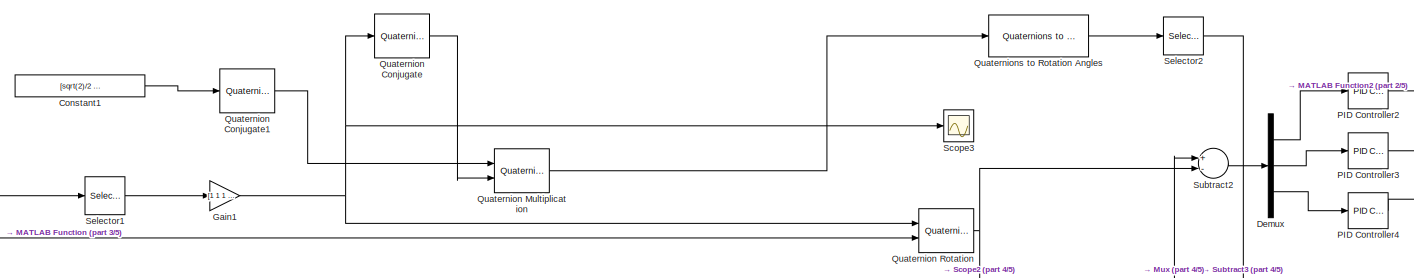
[diagram: root canvas - part 1/5, top center region]
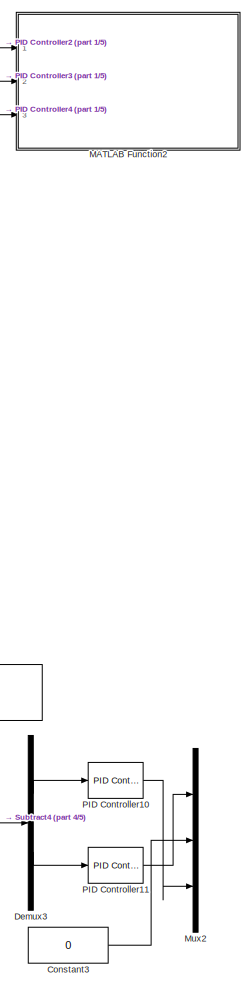
[diagram: root canvas - part 2/5, middle right region]
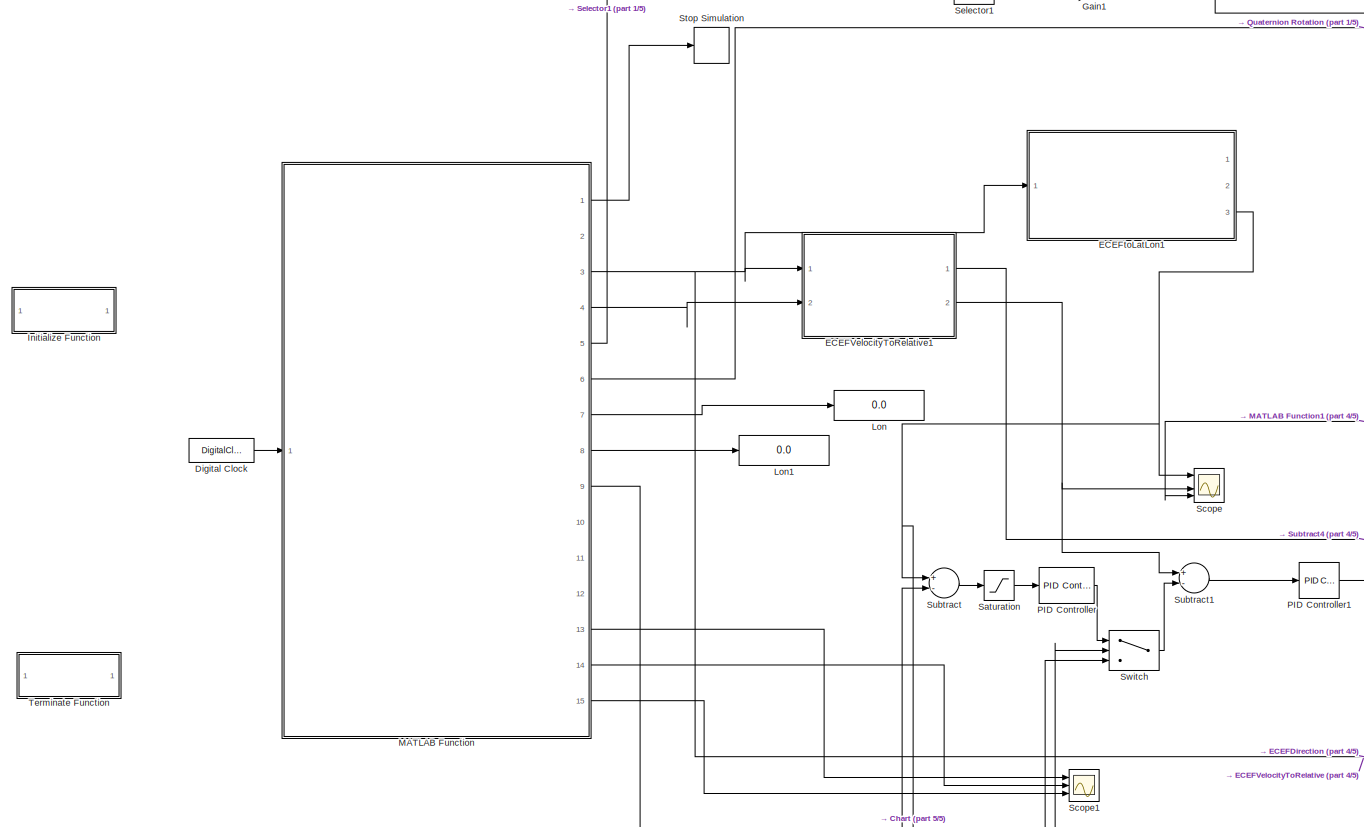
[diagram: root canvas - part 3/5, middle left region]
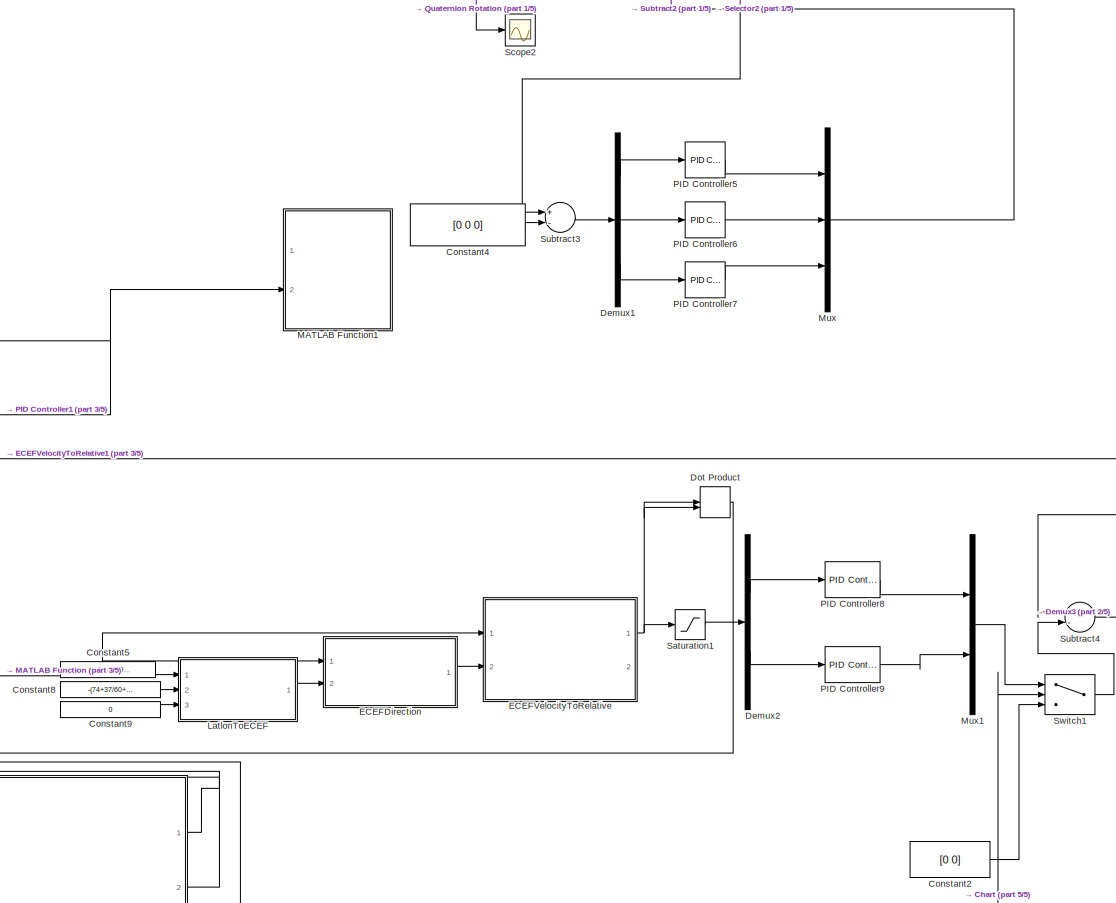
[diagram: root canvas - part 4/5, middle right region]
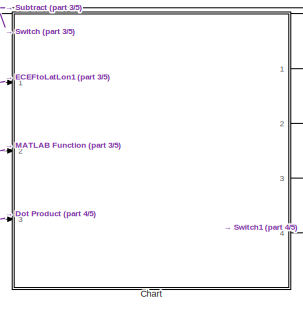
[diagram: root canvas - part 5/5, bottom center region]
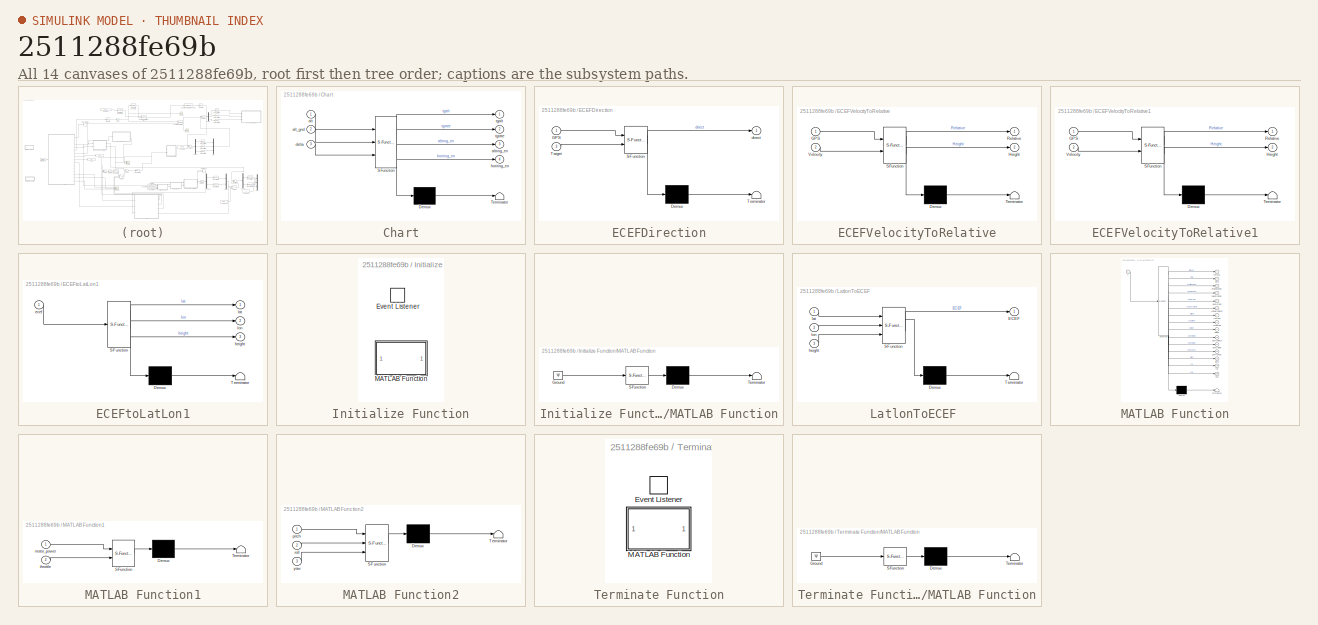
[diagram: thumbnail index - all 14 canvases of the model, root first then tree order]
MODEL slx_2511288fe69b
KIND model
CONFIG AbsTol = auto
CONFIG EnableMultiTasking = off
CONFIG FixedStep = auto
CONFIG MaxStep = auto
CONFIG MinStep = auto
CONFIG RelTol = 1e-3
CONFIG SampleTimeConstraint = Unconstrained
CONFIG Solver = VariableStepDiscrete
CONFIG SolverName = VariableStepDiscrete
CONFIG StartTime = 0.0
CONFIG StopTime = 200
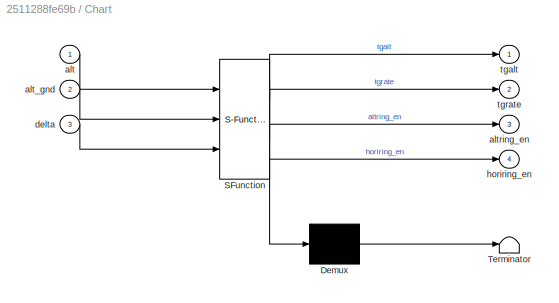
BLOCK [SubSystem] Chart
  BlockKeywords = __PRM__SERIALIZED__DATA__:Stateflow Chart,Stateflow Diagram
  ErrorFcn = Stateflow.Translate.translate
  PermitHierarchicalResolution = ExplicitOnly
  Ports = [3, 4]
  RequestExecContextInheritance = off
  SFBlockType = Chart
  TreatAsAtomicUnit = on
BLOCK [Demux] Chart/ Demux 
  Outputs = 1
  Ports = [1, 1]
BLOCK [S-Function] Chart/ SFunction 
  EnableBusSupport = on
  FunctionName = sf_sfun
  PortCounts = [3 5]
  Ports = [3, 5]
  SFcnIsStateOwnerBlock = off
  SFunctionDeploymentMode = off
  Tag = Stateflow S-Function untitled 11
BLOCK [Terminator] Chart/ Terminator 
BLOCK [Inport] Chart/alt
  IconDisplay = Port number
BLOCK [Inport] Chart/alt_gnd
  IconDisplay = Port number
  Port = 2
BLOCK [Outport] Chart/altring_en
  IconDisplay = Port number
  Port = 3
BLOCK [Inport] Chart/delta
  IconDisplay = Port number
  Port = 3
BLOCK [Outport] Chart/horiring_en
  IconDisplay = Port number
  Port = 4
BLOCK [Outport] Chart/tgalt
  IconDisplay = Port number
BLOCK [Outport] Chart/tgrate
  IconDisplay = Port number
  Port = 2
BLOCK [Constant] Constant1
  Value = [sqrt(2)/2 0 0 -sqrt(2)/2]
BLOCK [Constant] Constant2
  Value = [0 0]
BLOCK [Constant] Constant3
  Value = 0
BLOCK [Constant] Constant4
  Value = [0 0 0]
BLOCK [Constant] Constant5
  Value = -(0+5/60+49/3600)
BLOCK [Constant] Constant8
  Value = -(74+37/60+3/3600)
BLOCK [Constant] Constant9
  Value = 0
BLOCK [Demux] Demux
  DisplayOption = bar
  Outputs = 3
  Ports = [1, 3]
BLOCK [Demux] Demux1
  DisplayOption = bar
  Outputs = 3
  Ports = [1, 3]
BLOCK [Demux] Demux2
  DisplayOption = bar
  Outputs = 2
  Ports = [1, 2]
BLOCK [Demux] Demux3
  DisplayOption = bar
  Outputs = 2
  Ports = [1, 2]
BLOCK [DigitalClock] Digital Clock
  SampleTime = 0.01
BLOCK [DotProduct] Dot Product
  OutDataTypeStr = Inherit: Inherit via internal rule
BLOCK [SubSystem] ECEFDirection
  ErrorFcn = Stateflow.Translate.translate
  PermitHierarchicalResolution = ExplicitOnly
  Ports = [2, 1]
  RequestExecContextInheritance = off
  SFBlockType = MATLAB Function
  TreatAsAtomicUnit = on
BLOCK [Demux] ECEFDirection/ Demux 
  Outputs = 1
  Ports = [1, 1]
BLOCK [S-Function] ECEFDirection/ SFunction 
  EnableBusSupport = on
  FunctionName = sf_sfun
  PortCounts = [2 2]
  Ports = [2, 2]
  SFcnIsStateOwnerBlock = off
  SFunctionDeploymentMode = off
  Tag = Stateflow S-Function untitled 8
BLOCK [Terminator] ECEFDirection/ Terminator 
BLOCK [Inport] ECEFDirection/GPS
  IconDisplay = Port number
BLOCK [Inport] ECEFDirection/Target
  IconDisplay = Port number
  Port = 2
BLOCK [Outport] ECEFDirection/direct
  IconDisplay = Port number
BLOCK [SubSystem] ECEFVelocityToRelative
  ErrorFcn = Stateflow.Translate.translate
  PermitHierarchicalResolution = ExplicitOnly
  Ports = [2, 2]
  RequestExecContextInheritance = off
  SFBlockType = MATLAB Function
  TreatAsAtomicUnit = on
BLOCK [Demux] ECEFVelocityToRelative/ Demux 
  Outputs = 1
  Ports = [1, 1]
BLOCK [S-Function] ECEFVelocityToRelative/ SFunction 
  EnableBusSupport = on
  FunctionName = sf_sfun
  PortCounts = [2 3]
  Ports = [2, 3]
  SFcnIsStateOwnerBlock = off
  SFunctionDeploymentMode = off
  Tag = Stateflow S-Function untitled 10
BLOCK [Terminator] ECEFVelocityToRelative/ Terminator 
BLOCK [Inport] ECEFVelocityToRelative/GPS
  IconDisplay = Port number
BLOCK [Outport] ECEFVelocityToRelative/Height
  IconDisplay = Port number
  Port = 2
BLOCK [Outport] ECEFVelocityToRelative/Relative
  IconDisplay = Port number
BLOCK [Inport] ECEFVelocityToRelative/Velocity
  IconDisplay = Port number
  Port = 2
BLOCK [SubSystem] ECEFVelocityToRelative1
  ErrorFcn = Stateflow.Translate.translate
  PermitHierarchicalResolution = ExplicitOnly
  Ports = [2, 2]
  RequestExecContextInheritance = off
  SFBlockType = MATLAB Function
  TreatAsAtomicUnit = on
BLOCK [Demux] ECEFVelocityToRelative1/ Demux 
  Outputs = 1
  Ports = [1, 1]
BLOCK [S-Function] ECEFVelocityToRelative1/ SFunction 
  EnableBusSupport = on
  FunctionName = sf_sfun
  PortCounts = [2 3]
  Ports = [2, 3]
  SFcnIsStateOwnerBlock = off
  SFunctionDeploymentMode = off
  Tag = Stateflow S-Function untitled 9
BLOCK [Terminator] ECEFVelocityToRelative1/ Terminator 
BLOCK [Inport] ECEFVelocityToRelative1/GPS
  IconDisplay = Port number
BLOCK [Outport] ECEFVelocityToRelative1/Height
  IconDisplay = Port number
  Port = 2
BLOCK [Outport] ECEFVelocityToRelative1/Relative
  IconDisplay = Port number
BLOCK [Inport] ECEFVelocityToRelative1/Velocity
  IconDisplay = Port number
  Port = 2
BLOCK [SubSystem] ECEFtoLatLon1
  ErrorFcn = Stateflow.Translate.translate
  PermitHierarchicalResolution = ExplicitOnly
  Ports = [1, 3]
  RequestExecContextInheritance = off
  SFBlockType = MATLAB Function
  TreatAsAtomicUnit = on
BLOCK [Demux] ECEFtoLatLon1/ Demux 
  Outputs = 1
  Ports = [1, 1]
BLOCK [S-Function] ECEFtoLatLon1/ SFunction 
  EnableBusSupport = on
  FunctionName = sf_sfun
  PortCounts = [1 4]
  Ports = [1, 4]
  SFcnIsStateOwnerBlock = off
  SFunctionDeploymentMode = off
  Tag = Stateflow S-Function untitled 5
BLOCK [Terminator] ECEFtoLatLon1/ Terminator 
BLOCK [Inport] ECEFtoLatLon1/ecef
  IconDisplay = Port number
BLOCK [Outport] ECEFtoLatLon1/height
  IconDisplay = Port number
  Port = 3
BLOCK [Outport] ECEFtoLatLon1/lat
  IconDisplay = Port number
BLOCK [Outport] ECEFtoLatLon1/lon
  IconDisplay = Port number
  Port = 2
BLOCK [Gain] Gain1
  Gain = [1 1 1 1]
  OutDataTypeStr = Inherit: Inherit via internal rule
  ParamDataTypeStr = Inherit: Inherit via internal rule
  SaturateOnIntegerOverflow = off
BLOCK [SubSystem] Initialize Function
  Ports = []
  RequestExecContextInheritance = off
  TreatAsAtomicUnit = on
BLOCK [EventListener] Initialize Function/Event Listener
  DisableCoverage = on
  EventName = reset
BLOCK [SubSystem] Initialize Function/MATLAB Function
  ErrorFcn = Stateflow.Translate.translate
  PermitHierarchicalResolution = ExplicitOnly
  Ports = []
  RequestExecContextInheritance = off
  SFBlockType = MATLAB Function
  TreatAsAtomicUnit = on
BLOCK [Demux] Initialize Function/MATLAB Function/ Demux 
  Outputs = 1
  Ports = [1, 1]
BLOCK [Ground] Initialize Function/MATLAB Function/ Ground 
BLOCK [S-Function] Initialize Function/MATLAB Function/ SFunction 
  EnableBusSupport = on
  FunctionName = sf_sfun
  PortCounts = [1 1]
  Ports = [1, 1]
  SFcnIsStateOwnerBlock = off
  SFunctionDeploymentMode = off
  Tag = Stateflow S-Function untitled 1
BLOCK [Terminator] Initialize Function/MATLAB Function/ Terminator 
BLOCK [SubSystem] LatlonToECEF 
  ErrorFcn = Stateflow.Translate.translate
  PermitHierarchicalResolution = ExplicitOnly
  Ports = [3, 1]
  RequestExecContextInheritance = off
  SFBlockType = MATLAB Function
  TreatAsAtomicUnit = on
BLOCK [Demux] LatlonToECEF / Demux 
  Outputs = 1
  Ports = [1, 1]
BLOCK [S-Function] LatlonToECEF / SFunction 
  EnableBusSupport = on
  FunctionName = sf_sfun
  PortCounts = [3 2]
  Ports = [3, 2]
  SFcnIsStateOwnerBlock = off
  SFunctionDeploymentMode = off
  Tag = Stateflow S-Function untitled 7
BLOCK [Terminator] LatlonToECEF / Terminator 
BLOCK [Outport] LatlonToECEF /ECEF
  IconDisplay = Port number
BLOCK [Inport] LatlonToECEF /height
  IconDisplay = Port number
  Port = 3
BLOCK [Inport] LatlonToECEF /lat
  IconDisplay = Port number
BLOCK [Inport] LatlonToECEF /lon
  IconDisplay = Port number
  Port = 2
BLOCK [Display] Lon
  Decimation = 1
  Ports = [1]
BLOCK [Display] Lon1
  Decimation = 1
  Ports = [1]
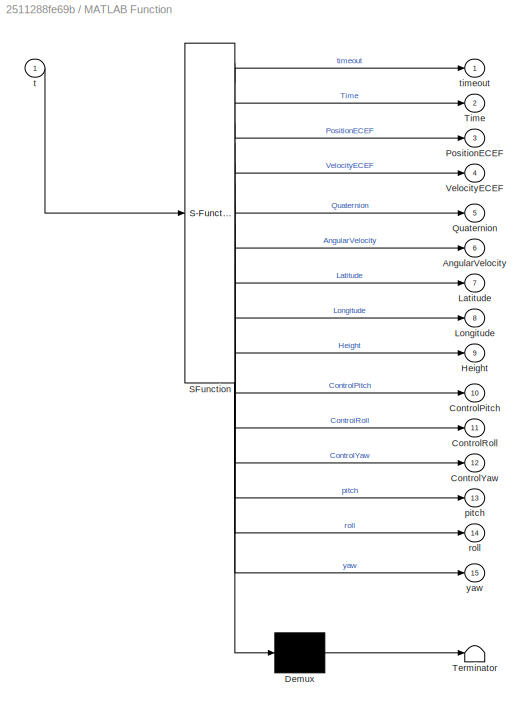
BLOCK [SubSystem] MATLAB Function
  ErrorFcn = Stateflow.Translate.translate
  PermitHierarchicalResolution = ExplicitOnly
  Ports = [1, 15]
  RequestExecContextInheritance = off
  SFBlockType = MATLAB Function
  TreatAsAtomicUnit = on
BLOCK [Demux] MATLAB Function/ Demux 
  Outputs = 1
  Ports = [1, 1]
BLOCK [S-Function] MATLAB Function/ SFunction 
  EnableBusSupport = on
  FunctionName = sf_sfun
  PortCounts = [1 16]
  Ports = [1, 16]
  SFcnIsStateOwnerBlock = off
  SFunctionDeploymentMode = off
  Tag = Stateflow S-Function untitled 2
BLOCK [Terminator] MATLAB Function/ Terminator 
BLOCK [Outport] MATLAB Function/AngularVelocity
  IconDisplay = Port number
  Port = 6
BLOCK [Outport] MATLAB Function/ControlPitch
  IconDisplay = Port number
  Port = 10
BLOCK [Outport] MATLAB Function/ControlRoll
  IconDisplay = Port number
  Port = 11
BLOCK [Outport] MATLAB Function/ControlYaw
  IconDisplay = Port number
  Port = 12
BLOCK [Outport] MATLAB Function/Height
  IconDisplay = Port number
  Port = 9
BLOCK [Outport] MATLAB Function/Latitude
  IconDisplay = Port number
  Port = 7
BLOCK [Outport] MATLAB Function/Longitude
  IconDisplay = Port number
  Port = 8
BLOCK [Outport] MATLAB Function/PositionECEF
  IconDisplay = Port number
  Port = 3
BLOCK [Outport] MATLAB Function/Quaternion
  IconDisplay = Port number
  Port = 5
BLOCK [Outport] MATLAB Function/Time
  IconDisplay = Port number
  Port = 2
BLOCK [Outport] MATLAB Function/VelocityECEF
  IconDisplay = Port number
  Port = 4
BLOCK [Outport] MATLAB Function/pitch
  IconDisplay = Port number
  Port = 13
BLOCK [Outport] MATLAB Function/roll
  IconDisplay = Port number
  Port = 14
BLOCK [Inport] MATLAB Function/t
  IconDisplay = Port number
BLOCK [Outport] MATLAB Function/timeout
  IconDisplay = Port number
BLOCK [Outport] MATLAB Function/yaw
  IconDisplay = Port number
  Port = 15
BLOCK [SubSystem] MATLAB Function1
  ErrorFcn = Stateflow.Translate.translate
  PermitHierarchicalResolution = ExplicitOnly
  Ports = [2]
  RequestExecContextInheritance = off
  SFBlockType = MATLAB Function
  TreatAsAtomicUnit = on
BLOCK [Demux] MATLAB Function1/ Demux 
  Outputs = 1
  Ports = [1, 1]
BLOCK [S-Function] MATLAB Function1/ SFunction 
  EnableBusSupport = on
  FunctionName = sf_sfun
  PortCounts = [2 1]
  Ports = [2, 1]
  SFcnIsStateOwnerBlock = off
  SFunctionDeploymentMode = off
  Tag = Stateflow S-Function untitled 4
BLOCK [Terminator] MATLAB Function1/ Terminator 
BLOCK [Inport] MATLAB Function1/motor_power
  IconDisplay = Port number
BLOCK [Inport] MATLAB Function1/throttle
  IconDisplay = Port number
  Port = 2
BLOCK [SubSystem] MATLAB Function2
  ErrorFcn = Stateflow.Translate.translate
  PermitHierarchicalResolution = ExplicitOnly
  Ports = [3]
  RequestExecContextInheritance = off
  SFBlockType = MATLAB Function
  TreatAsAtomicUnit = on
BLOCK [Demux] MATLAB Function2/ Demux 
  Outputs = 1
  Ports = [1, 1]
BLOCK [S-Function] MATLAB Function2/ SFunction 
  EnableBusSupport = on
  FunctionName = sf_sfun
  PortCounts = [3 1]
  Ports = [3, 1]
  SFcnIsStateOwnerBlock = off
  SFunctionDeploymentMode = off
  Tag = Stateflow S-Function untitled 6
BLOCK [Terminator] MATLAB Function2/ Terminator 
BLOCK [Inport] MATLAB Function2/pitch
  IconDisplay = Port number
BLOCK [Inport] MATLAB Function2/roll
  IconDisplay = Port number
  Port = 2
BLOCK [Inport] MATLAB Function2/yaw
  IconDisplay = Port number
  Port = 3
BLOCK [Mux] Mux
  DisplayOption = bar
  Inputs = 3
  Ports = [3, 1]
BLOCK [Mux] Mux1
  DisplayOption = bar
  Inputs = 2
  Ports = [2, 1]
BLOCK [Mux] Mux2
  DisplayOption = bar
  Inputs = 3
  Ports = [3, 1]
BLOCK [Reference] PID Controller  REF=simulink/Continuous/PID Controller
  Ports = [1, 1]
  SourceBlock = simulink/Continuous/PID Controller
  SourceProductBaseCode = SL
  SourceProductName = Simulink
  SourceType = PID 1dof
BLOCK [Reference] PID Controller1  REF=simulink/Continuous/PID Controller
  Ports = [1, 1]
  SourceBlock = simulink/Continuous/PID Controller
  SourceProductBaseCode = SL
  SourceProductName = Simulink
  SourceType = PID 1dof
BLOCK [Reference] PID Controller10  REF=simulink/Continuous/PID Controller
  Ports = [1, 1]
  SourceBlock = simulink/Continuous/PID Controller
  SourceProductBaseCode = SL
  SourceProductName = Simulink
  SourceType = PID 1dof
BLOCK [Reference] PID Controller11  REF=simulink/Continuous/PID Controller
  Ports = [1, 1]
  SourceBlock = simulink/Continuous/PID Controller
  SourceProductBaseCode = SL
  SourceProductName = Simulink
  SourceType = PID 1dof
BLOCK [Reference] PID Controller2  REF=simulink/Continuous/PID Controller
  Ports = [1, 1]
  SourceBlock = simulink/Continuous/PID Controller
  SourceProductBaseCode = SL
  SourceProductName = Simulink
  SourceType = PID 1dof
BLOCK [Reference] PID Controller3  REF=simulink/Continuous/PID Controller
  Ports = [1, 1]
  SourceBlock = simulink/Continuous/PID Controller
  SourceProductBaseCode = SL
  SourceProductName = Simulink
  SourceType = PID 1dof
BLOCK [Reference] PID Controller4  REF=simulink/Continuous/PID Controller
  Ports = [1, 1]
  SourceBlock = simulink/Continuous/PID Controller
  SourceProductBaseCode = SL
  SourceProductName = Simulink
  SourceType = PID 1dof
BLOCK [Reference] PID Controller5  REF=simulink/Continuous/PID Controller
  Ports = [1, 1]
  SourceBlock = simulink/Continuous/PID Controller
  SourceProductBaseCode = SL
  SourceProductName = Simulink
  SourceType = PID 1dof
BLOCK [Reference] PID Controller6  REF=simulink/Continuous/PID Controller
  Ports = [1, 1]
  SourceBlock = simulink/Continuous/PID Controller
  SourceProductBaseCode = SL
  SourceProductName = Simulink
  SourceType = PID 1dof
BLOCK [Reference] PID Controller7  REF=simulink/Continuous/PID Controller
  Ports = [1, 1]
  SourceBlock = simulink/Continuous/PID Controller
  SourceProductBaseCode = SL
  SourceProductName = Simulink
  SourceType = PID 1dof
BLOCK [Reference] PID Controller8  REF=simulink/Continuous/PID Controller
  Ports = [1, 1]
  SourceBlock = simulink/Continuous/PID Controller
  SourceProductBaseCode = SL
  SourceProductName = Simulink
  SourceType = PID 1dof
BLOCK [Reference] PID Controller9  REF=simulink/Continuous/PID Controller
  Ports = [1, 1]
  SourceBlock = simulink/Continuous/PID Controller
  SourceProductBaseCode = SL
  SourceProductName = Simulink
  SourceType = PID 1dof
BLOCK [Reference] Quaternion Conjugate  REF=aerolibutil/Quaternion
Conjugate
  Commented = through
  Ports = [1, 1]
  SourceBlock = aerolibutil/Quaternion\nConjugate
  SourceProductBaseCode = AE
  SourceProductName = Aerospace Blockset
  SourceType = Quaternion Conjugate
BLOCK [Reference] Quaternion Conjugate1  REF=aerolibutil/Quaternion
Conjugate
  Ports = [1, 1]
  SourceBlock = aerolibutil/Quaternion\nConjugate
  SourceProductBaseCode = AE
  SourceProductName = Aerospace Blockset
  SourceType = Quaternion Conjugate
BLOCK [Reference] Quaternion Multiplication  REF=aerolibutil/Quaternion
Multiplication
  Ports = [2, 1]
  SourceBlock = aerolibutil/Quaternion\nMultiplication
  SourceProductBaseCode = AE
  SourceProductName = Aerospace Blockset
  SourceType = Quaternion Multiplication
BLOCK [Reference] Quaternion Rotation  REF=aerolibutil/Quaternion
Rotation
  Ports = [2, 1]
  SourceBlock = aerolibutil/Quaternion\nRotation
  SourceProductBaseCode = AE
  SourceProductName = Aerospace Blockset
  SourceType = Quaternion Rotation
BLOCK [Reference] Quaternions to Rotation Angles  REF=sharedtransform/Quaternions to Rotation Angles
  AttributesFormatString = Rotation Order: %<rotationOrder>
  Ports = [1, 1]
  SourceBlock = sharedtransform/Quaternions to Rotation Angles
  SourceProductBaseCode = AE
  SourceProductName = Aerospace Blockset
  SourceType = Quat2Ang
BLOCK [Saturate] Saturation
  InputPortMap = u0
  LowerLimit = -300
  Ports = [1, 1]
  UpperLimit = 300
BLOCK [Saturate] Saturation1
  InputPortMap = u0
  LowerLimit = -50
  Ports = [1, 1]
  UpperLimit = 50
BLOCK [Scope] Scope
  Floating = off
  NumInputPorts = 4
  Ports = [4]
  ScopeSpecificationString = Simulink.scopes.TimeScopeBlockCfg('CurrentConfiguration', extmgr.ConfigurationSet(extmgr.Configuration('Core','General UI',true),extmgr.Configuration('Core','Source UI',true),extmgr.Configuration('Sources','WiredSimulink',true),extmgr.Configuration('Visuals','Time Domain',true,'SerializedDisplays',{struct('MinYLimReal','-133.90308','MaxYLimReal','1310.30173','YLabelReal','','MinYLimMag',' 0.00000'...<+1471ch>
BLOCK [Scope] Scope1
  Floating = off
  NumInputPorts = 3
  Ports = [3]
  ScopeSpecificationString = Simulink.scopes.TimeScopeBlockCfg('CurrentConfiguration', extmgr.ConfigurationSet(extmgr.Configuration('Core','General UI',true),extmgr.Configuration('Core','Source UI',true),extmgr.Configuration('Sources','WiredSimulink',true,'DataLoggingVariableName','ScopeData1'),extmgr.Configuration('Visuals','Time Domain',true,'SerializedDisplays',{struct('MinYLimReal','-240.45656','MaxYLimReal','419.6657','Y...<+1483ch>
BLOCK [Scope] Scope2
  Floating = off
  NumInputPorts = 1
  Ports = [1]
  ScopeSpecificationString = Simulink.scopes.TimeScopeBlockCfg('CurrentConfiguration', extmgr.ConfigurationSet(extmgr.Configuration('Core','General UI',true),extmgr.Configuration('Core','Source UI',true),extmgr.Configuration('Sources','WiredSimulink',true,'DataLoggingVariableName','ScopeData2'),extmgr.Configuration('Visuals','Time Domain',true,'SerializedDisplays',{struct('MinYLimReal','-10.56184','MaxYLimReal','10.42194','YL...<+1506ch>
BLOCK [Scope] Scope3
  Floating = off
  NumInputPorts = 1
  Ports = [1]
  ScopeSpecificationString = Simulink.scopes.TimeScopeBlockCfg('CurrentConfiguration', extmgr.ConfigurationSet(extmgr.Configuration('Core','General UI',true),extmgr.Configuration('Core','Source UI',true),extmgr.Configuration('Sources','WiredSimulink',true,'DataLoggingVariableName','ScopeData1'),extmgr.Configuration('Visuals','Time Domain',true,'SerializedDisplays',{struct('MinYLimReal','-1.16009','MaxYLimReal','1.12203','YLab...<+1444ch>
BLOCK [Selector] Selector1
  IndexOptions = Index vector (dialog)
  Indices = [4 1 2 3]
  InputPortWidth = 4
  OutputSizes = 1
  Ports = [1, 1]
BLOCK [Selector] Selector2
  IndexOptions = Index vector (dialog)
  Indices = [2 1 3]
  InputPortWidth = 3
  OutputSizes = 1
  Ports = [1, 1]
BLOCK [Stop] Stop Simulation
BLOCK [Sum] Subtract
  InputSameDT = off
  Inputs = +-
  OutDataTypeStr = Inherit: Inherit via internal rule
  Ports = [2, 1]
  SaturateOnIntegerOverflow = off
BLOCK [Sum] Subtract1
  InputSameDT = off
  Inputs = +-
  OutDataTypeStr = Inherit: Inherit via internal rule
  Ports = [2, 1]
  SaturateOnIntegerOverflow = off
BLOCK [Sum] Subtract2
  InputSameDT = off
  Inputs = +-
  OutDataTypeStr = Inherit: Inherit via internal rule
  Ports = [2, 1]
  SaturateOnIntegerOverflow = off
BLOCK [Sum] Subtract3
  InputSameDT = off
  Inputs = +-
  OutDataTypeStr = Inherit: Inherit via internal rule
  Ports = [2, 1]
  SaturateOnIntegerOverflow = off
BLOCK [Sum] Subtract4
  InputSameDT = off
  Inputs = +-
  OutDataTypeStr = Inherit: Inherit via internal rule
  Ports = [2, 1]
  SaturateOnIntegerOverflow = off
BLOCK [Switch] Switch
  Criteria = u2 > Threshold
  InputSameDT = off
  SaturateOnIntegerOverflow = off
BLOCK [Switch] Switch1
  Criteria = u2 > Threshold
  InputSameDT = off
  SaturateOnIntegerOverflow = off
BLOCK [SubSystem] Terminate Function
  Ports = []
  RequestExecContextInheritance = off
  TreatAsAtomicUnit = on
BLOCK [EventListener] Terminate Function/Event Listener
  DisableCoverage = on
  EventName = reset
  EventType = Terminate
BLOCK [SubSystem] Terminate Function/MATLAB Function
  ErrorFcn = Stateflow.Translate.translate
  PermitHierarchicalResolution = ExplicitOnly
  Ports = []
  RequestExecContextInheritance = off
  SFBlockType = MATLAB Function
  TreatAsAtomicUnit = on
BLOCK [Demux] Terminate Function/MATLAB Function/ Demux 
  Outputs = 1
  Ports = [1, 1]
BLOCK [Ground] Terminate Function/MATLAB Function/ Ground 
BLOCK [S-Function] Terminate Function/MATLAB Function/ SFunction 
  EnableBusSupport = on
  FunctionName = sf_sfun
  PortCounts = [1 1]
  Ports = [1, 1]
  SFcnIsStateOwnerBlock = off
  SFunctionDeploymentMode = off
  Tag = Stateflow S-Function untitled 3
BLOCK [Terminator] Terminate Function/MATLAB Function/ Terminator 
LINE Chart:1 -> Subtract:2
LINE Chart:2 -> Switch:3
LINE Chart:3 -> Switch:2
LINE Chart:4 -> Switch1:2
LINE Constant1:1 -> Quaternion Conjugate1:1
LINE Constant2:1 -> Switch1:3
LINE Constant3:1 -> Mux2:2
LINE Constant4:1 -> Subtract3:2
LINE Constant5:1 -> LatlonToECEF :1
LINE Constant8:1 -> LatlonToECEF :2
LINE Constant9:1 -> LatlonToECEF :3
LINE Demux1:1 -> PID Controller5:1
LINE Demux1:2 -> PID Controller6:1
LINE Demux1:3 -> PID Controller7:1
LINE Demux2:1 -> PID Controller8:1
LINE Demux2:2 -> PID Controller9:1
LINE Demux3:1 -> PID Controller10:1
LINE Demux3:2 -> PID Controller11:1
LINE Demux:1 -> PID Controller2:1
LINE Demux:2 -> PID Controller3:1
LINE Demux:3 -> PID Controller4:1
LINE Digital Clock:1 -> MATLAB Function:1
LINE Dot Product:1 -> Chart:3
LINE ECEFDirection:1 -> ECEFVelocityToRelative:2
LINE ECEFVelocityToRelative1:1 -> Subtract4:1
NET ECEFVelocityToRelative1:2 -> Scope:3, Subtract1:1
NET ECEFVelocityToRelative:1 -> Dot Product:1, Dot Product:2, Saturation1:1
NET ECEFtoLatLon1:3 -> Chart:1, Scope:1, Subtract:1
NET Gain1:1 -> Quaternion Conjugate:1, Quaternion Rotation:1, Scope3:1
LINE LatlonToECEF :1 -> ECEFDirection:2
LINE MATLAB Function:1 -> Stop Simulation:1
LINE MATLAB Function:13 -> Scope1:1
LINE MATLAB Function:14 -> Scope1:2
LINE MATLAB Function:15 -> Scope1:3
NET MATLAB Function:3 -> ECEFDirection:1, ECEFVelocityToRelative1:1, ECEFVelocityToRelative:1, ECEFtoLatLon1:1
LINE MATLAB Function:4 -> ECEFVelocityToRelative1:2
LINE MATLAB Function:5 -> Selector1:1
LINE MATLAB Function:6 -> Quaternion Rotation:2
LINE MATLAB Function:7 -> Lon:1
LINE MATLAB Function:8 -> Lon1:1
LINE MATLAB Function:9 -> Chart:2
LINE Mux1:1 -> Switch1:1
LINE Mux:1 -> Subtract2:1
LINE PID Controller10:1 -> Mux2:3
LINE PID Controller11:1 -> Mux2:1
NET PID Controller1:1 -> MATLAB Function1:2, Scope:4
LINE PID Controller2:1 -> MATLAB Function2:1
LINE PID Controller3:1 -> MATLAB Function2:2
LINE PID Controller4:1 -> MATLAB Function2:3
LINE PID Controller5:1 -> Mux:1
LINE PID Controller6:1 -> Mux:2
LINE PID Controller7:1 -> Mux:3
LINE PID Controller8:1 -> Mux1:1
LINE PID Controller9:1 -> Mux1:2
LINE PID Controller:1 -> Switch:1
LINE Quaternion Conjugate1:1 -> Quaternion Multiplication:1
LINE Quaternion Conjugate:1 -> Quaternion Multiplication:2
LINE Quaternion Multiplication:1 -> Quaternions to Rotation Angles:1
NET Quaternion Rotation:1 -> Scope2:1, Subtract2:2
LINE Quaternions to Rotation Angles:1 -> Selector2:1
LINE Saturation1:1 -> Demux2:1
LINE Saturation:1 -> PID Controller:1
LINE Selector1:1 -> Gain1:1
LINE Selector2:1 -> Subtract3:1
LINE Subtract1:1 -> PID Controller1:1
LINE Subtract2:1 -> Demux:1
LINE Subtract3:1 -> Demux1:1
LINE Subtract4:1 -> Demux3:1
LINE Subtract:1 -> Saturation:1
LINE Switch1:1 -> Subtract4:2
LINE Switch:1 -> Subtract1:2
note: NET lines group one-source signal fan-out (src -> all destinations, sorted); 1:1 wires keep LINE
CHART Initialize Function/MATLAB Function states=1 transitions=1
  STATE_LABEL 'eML_blk_kernel()'
  STATE_LABEL "SCRIPT:\nfunction  KRPC_Init()\ncoder.extrinsic ('KRPC_Wrapper_Init');\nKRPC_Wrapper_Init();"
CHART MATLAB Function states=1 transitions=1
  STATE_LABEL 'eML_blk_kernel()'
  STATE_LABEL 'SCRIPT:\nfunction [timeout,Time,PositionECEF,VelocityECEF,Quaternion,AngularVelocity, ...\n    Latitude,Longitude,Height,ControlPitch,ControlRoll,ControlYaw ...\n     ,pitch,roll,yaw]  = KRPC_GetData(t)\n\ntimeout = false;\nTime = 0;\nPositionECEF = zeros(1,3);\nVelocityECEF = zeros(1,3);\nQuaternion = zeros(1,4);\nAngularVelocity = zeros(1,3);\nLatitude=0;Longitude=0;Height=0;ControlPitch=0;ControlRoll=0;Co...<+272ch>'
CHART Terminate Function/MATLAB Function states=1 transitions=1
  STATE_LABEL 'eML_blk_kernel()'
  STATE_LABEL "SCRIPT:\nfunction  KRPC_DeInit()\ncoder.extrinsic ('KRPC_Wrapper_DeInit');\nKRPC_Wrapper_DeInit();"
CHART MATLAB Function1 states=1 transitions=1
  STATE_LABEL 'eML_blk_kernel()'
  STATE_LABEL "SCRIPT:\nfunction KRPC_SetData(motor_power,throttle)\ncoder.extrinsic ('KRPC_Wrapper_SetData');\nKRPC_Wrapper_SetData(motor_power,throttle);\nend"
CHART ECEFtoLatLon1 states=1 transitions=1
  STATE_LABEL 'eML_blk_kernel()'
  STATE_LABEL 'SCRIPT:\nfunction [lat,lon,height] = ECEFtoLatLon(ecef)\nlon = atan2(ecef(3),ecef(1)) *180/pi;\nlat = asin(ecef(2)/norm(ecef,2)) *180/pi;\nheight = norm(ecef,2) - 600e3;'
CHART MATLAB Function2 states=1 transitions=1
  STATE_LABEL 'eML_blk_kernel()'
  STATE_LABEL "SCRIPT:\nfunction KRPC_SetData(pitch,roll,yaw)\ncoder.extrinsic ('KRPC_Wrapper_SetData2');\n KRPC_Wrapper_SetData2(pitch,roll,yaw)\nend"
CHART LatlonToECEF
 states=1 transitions=1
  STATE_LABEL 'eML_blk_kernel()'
  STATE_LABEL 'SCRIPT:\nfunction ECEF = LatLontoECEF(lat,lon,height)\n% lon(i) = atan2(ecef(i,2),ecef(i,1)) *180/pi;\n% lat(i) = asin(ecef(i,2)/norm(ecef(i,:),2)) *180/pi;\nECEF = zeros(3,1);\nECEF(2) = sin(lat*pi/180)*(600e3+height);\nr = cos(lat*pi/180)*(600e3+height);\nECEF(3) = sin(lon*pi/180) * r;\nECEF(1) = cos(lon*pi/180) * r;\n'
CHART ECEFDirection states=1 transitions=1
  STATE_LABEL 'eML_blk_kernel()'
  STATE_LABEL 'SCRIPT:\nfunction direct = ECEFDirection(GPS,Target)\n\nGPS = reshape(GPS,1,[]);\nTarget = reshape(Target,1,[]);\n% 统一高度\n%GPS = 600e3 * GPS / norm(GPS);\n%Target = 600e3 * Target / norm(Target);\n% 过两点做弧\n% 求角距离\nsin_angdist = cross(GPS,Target) / (norm(GPS) * norm(Target));\ndist = asin(norm(sin_angdist)) * 600e3;\n%求方向向量\ndirect = cross(GPS,sin_angdist);\ndirect = direct/norm(direct);\ndirect = direct * dist;\n...<+1ch>'
CHART ECEFVelocityToRelative1 states=1 transitions=1
  STATE_LABEL 'eML_blk_kernel()'
  STATE_LABEL 'SCRIPT:\nfunction [Relative,Height] = ECEFVelocityToRelative(GPS,Velocity)\nRelative = zeros(2,1);\nGPS = reshape(GPS,1,[]);\nGPS = GPS / norm(GPS);\n% 求方向向量\nEast = cross(GPS,[0 1 0]);\nNorth = cross(East,GPS);\nRelative(1) = dot(North,Velocity);\nRelative(2) = dot(East,Velocity);\nHeight = dot(GPS,Velocity);'
CHART ECEFVelocityToRelative states=1 transitions=1
  STATE_LABEL 'eML_blk_kernel()'
  STATE_LABEL 'SCRIPT:\nfunction [ Relative,Height] = ECEFVelocityToRelative(GPS,Velocity)\nRelative = zeros(2,1);\nGPS = reshape(GPS,1,[]);\nGPS = GPS / norm(GPS);\n% 求方向向量\nEast = cross(GPS,[0 1 0]);\nNorth = cross(East,GPS);\nRelative(1) = dot(North,Velocity);\nRelative(2) = dot(East,Velocity);\nHeight = dot(GPS,Velocity);'
CHART Chart states=5 transitions=5
  STATE_LABEL 'Takeoff\ntgalt=300\ntgrate=30\naltring_en=1\nhoriring_en=-1\n'
  STATE_LABEL 'Move\nhoriring_en=1'
  STATE_LABEL 'Descent\ntgrate=-5\naltring_en=-1\nhoriring_en=1'
  STATE_LABEL 'Land\ntgrate=-1\ntgalt=alt_gnd\naltring_en=0'
  STATE_LABEL 'Landed\n'
